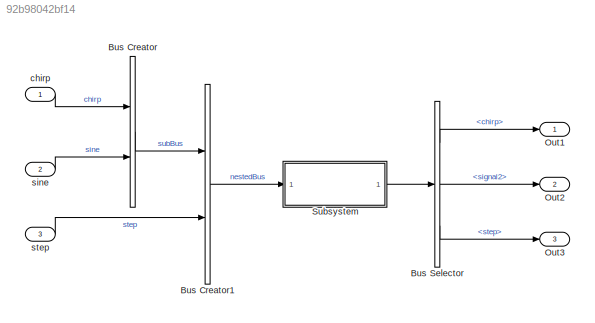
MODEL slx_92b98042bf14
KIND model
CONFIG AbsTol = auto
CONFIG EnableMultiTasking = off
CONFIG FixedStep = 0.200000
CONFIG MaxStep = auto
CONFIG MinStep = auto
CONFIG PreLoadFcn = % Bus object: subBus \nclear elems;\nelems(1) = Simulink.BusElement;\nelems(1).Name = 'chirp';\nelems(1).Dimensions = 2;\nelems(1).DimensionsMode = 'Fixed';\nelems(1).DataType = 'double';\nelems(1).SampleTime = -1;\nelems(1).Complexity = 'real';\nelems(1).Min = [];\nelems(1).Max = [];\nelems(1).DocUnits = '';\nelems(1).Description = '';\n\nelems(2) = Simulink.BusElement;\nelems(2).Name = 'sine';\nelems(2).Dimensi...<+1240ch>
CONFIG RelTol = 1e-3
CONFIG SampleTimeConstraint = Unconstrained
CONFIG Solver = FixedStepDiscrete
CONFIG SolverName = FixedStepDiscrete
CONFIG StartTime = 0.0
CONFIG StopTime = 10.0
BLOCK [BusCreator] Bus Creator
  AttributesFormatString = SubBus
  DisplayOption = bar
  InheritFromInputs = on
  Inputs = 2
  Ports = [2, 1]
BLOCK [BusCreator] Bus Creator1
  AttributesFormatString = NestedBus
  DisplayOption = bar
  InheritFromInputs = on
  Inputs = 2
  Ports = [2, 1]
BLOCK [BusSelector] Bus Selector
  AttributesFormatString = Bus Selector
  OutputAsBus = off
  OutputSignals = signal1.chirp,signal1.signal2,step
  Ports = [1, 3]
BLOCK [Outport] Out1
  IconDisplay = Port number
BLOCK [Outport] Out2
  IconDisplay = Port number
  Port = 2
BLOCK [Outport] Out3
  IconDisplay = Port number
  Port = 3
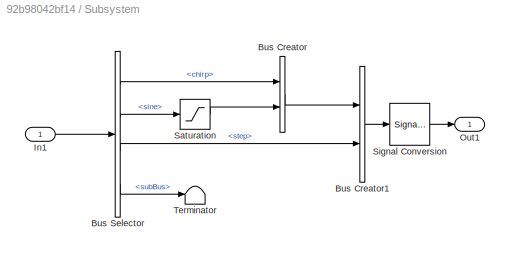
BLOCK [SubSystem] Subsystem
  Ports = [1, 1]
  RequestExecContextInheritance = off
  Variant = off
BLOCK [BusCreator] Subsystem/Bus Creator
  DisplayOption = bar
  InheritFromInputs = on
  Inputs = 2
  Ports = [2, 1]
BLOCK [BusCreator] Subsystem/Bus Creator1
  DisplayOption = bar
  InheritFromInputs = on
  Inputs = 2
  Ports = [2, 1]
BLOCK [BusSelector] Subsystem/Bus Selector
  AttributesFormatString = Bus Selector
  OutputAsBus = off
  OutputSignals = subBus.chirp,subBus.sine,step,subBus
  Ports = [1, 4]
BLOCK [Inport] Subsystem/In1
  IconDisplay = Port number
BLOCK [Outport] Subsystem/Out1
  IconDisplay = Port number
BLOCK [Saturate] Subsystem/Saturation
  InputPortMap = u0
  LowerLimit = -5
  Ports = [1, 1]
BLOCK [SignalConversion] Subsystem/Signal Conversion
  ConversionOutput = Nonvirtual bus
  OutDataTypeStr = Bus: topBus
  OverrideOpt = off
BLOCK [Terminator] Subsystem/Terminator
BLOCK [Inport] chirp
  IconDisplay = Port number
  OutDataTypeStr = double
BLOCK [Inport] sine
  IconDisplay = Port number
  OutDataTypeStr = int32
  Port = 2
BLOCK [Inport] step
  IconDisplay = Port number
  OutDataTypeStr = boolean
  Port = 3
  PortDimensions = 4
LINE Bus Creator1:1 -> Subsystem:1
LINE Bus Creator:1 -> Bus Creator1:1
LINE Bus Selector:1 -> Out1:1
LINE Bus Selector:2 -> Out2:1
LINE Bus Selector:3 -> Out3:1
LINE Subsystem/Bus Creator1:1 -> Subsystem/Signal Conversion:1
LINE Subsystem/Bus Creator:1 -> Subsystem/Bus Creator1:1
LINE Subsystem/Bus Selector:1 -> Subsystem/Bus Creator:1
LINE Subsystem/Bus Selector:2 -> Subsystem/Saturation:1
LINE Subsystem/Bus Selector:3 -> Subsystem/Bus Creator1:2
LINE Subsystem/Bus Selector:4 -> Subsystem/Terminator:1
LINE Subsystem/In1:1 -> Subsystem/Bus Selector:1
LINE Subsystem/Saturation:1 -> Subsystem/Bus Creator:2
LINE Subsystem/Signal Conversion:1 -> Subsystem/Out1:1
LINE Subsystem:1 -> Bus Selector:1
LINE chirp:1 -> Bus Creator:1
LINE sine:1 -> Bus Creator:2
LINE step:1 -> Bus Creator1:2
